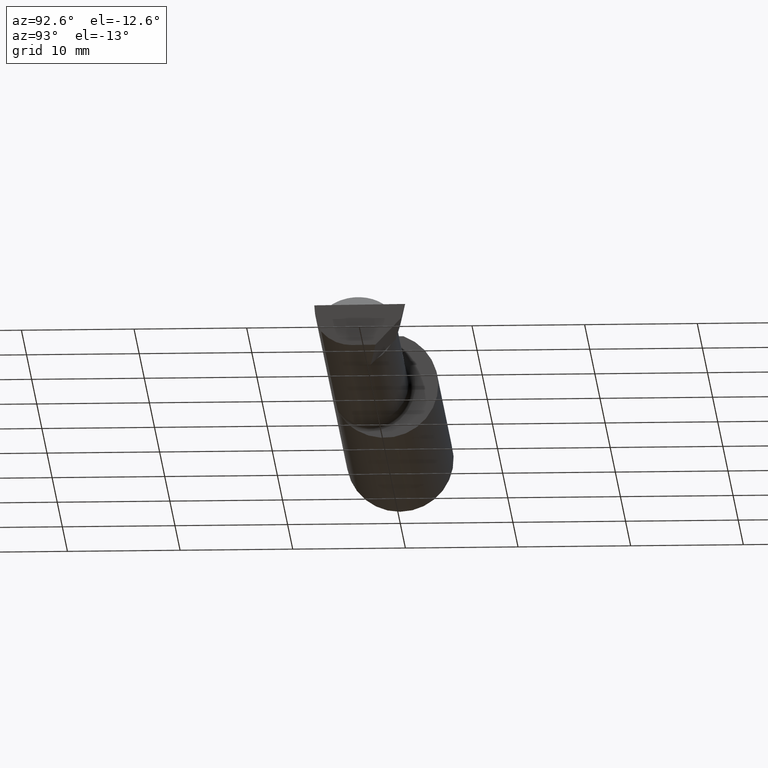
[diagram: clean part render]
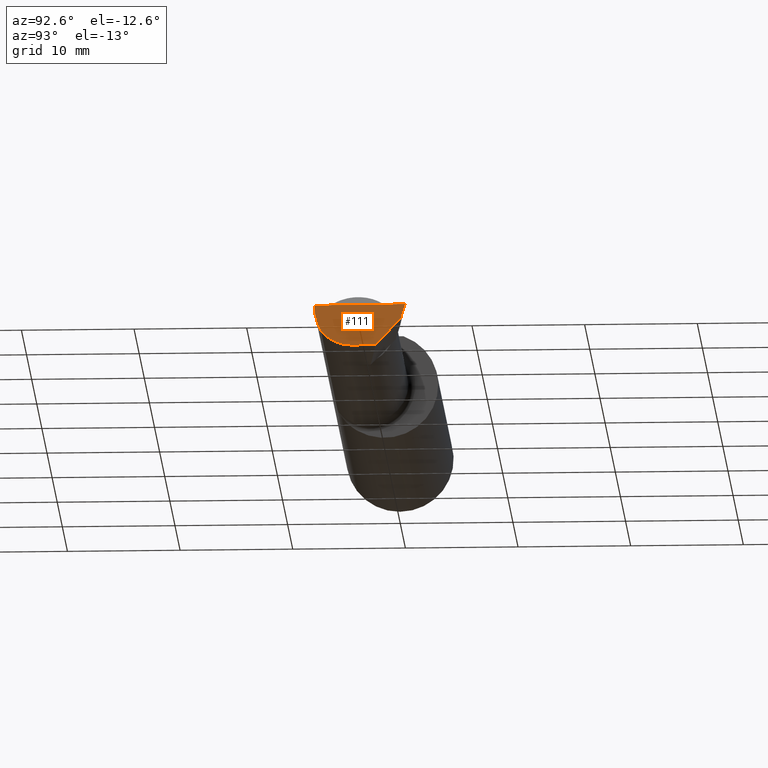
[diagram: same view with one face highlighted and labeled with its STEP entity id]
A machine part, auxiliary view. The second image highlights one B-rep face of the part: STEP entity #111.
In plain terms, the highlighted planar face has unit normal (-0.9922, 0.026, 0.1219).
Its self-contained STEP definition (entity closure, byte-faithful):
#16 = ORIENTED_EDGE ( 'NONE', *, *, #217, .T. ) ;
#28 = EDGE_CURVE ( 'NONE', #187, #472, #323, .T. ) ;
#42 = VERTEX_POINT ( 'NONE', #310 ) ;
#56 = ORIENTED_EDGE ( 'NONE', *, *, #28, .F. ) ;
#77 = CARTESIAN_POINT ( 'NONE',  ( 2.477925907309857401, -0.1365595166907236646, -0.1227499502647107360 ) ) ;
#105 =( BOUNDED_CURVE ( )  B_SPLINE_CURVE ( 3, ( #617, #77, #337, #522 ),
 .UNSPECIFIED., .F., .T. ) 
 B_SPLINE_CURVE_WITH_KNOTS ( ( 4, 4 ),
 ( 5.632580117768154260, 6.493234751459282528 ),
 .UNSPECIFIED. ) 
 CURVE ( )  GEOMETRIC_REPRESENTATION_ITEM ( )  RATIONAL_B_SPLINE_CURVE ( ( 1.000000000000000000, 0.9392195014330942948, 0.9392195014330942948, 1.000000000000000000 ) ) 
 REPRESENTATION_ITEM ( '' )  );
#109 = CARTESIAN_POINT ( 'NONE',  ( 2.493766568580444432, 0.1168246249203733628, -0.04780233936830585728 ) ) ;
#111 = ADVANCED_FACE ( 'NONE', ( #554 ), #551, .F. ) ;
#144 = CARTESIAN_POINT ( 'NONE',  ( 2.481080296960508580, -0.1635956445993030639, -0.09130436773856169530 ) ) ;
#167 = CARTESIAN_POINT ( 'NONE',  ( 2.491672876940991710, -0.1873499999999999888, 6.915950918908297591E-17 ) ) ;
#187 = VERTEX_POINT ( 'NONE', #144 ) ;
#188 = EDGE_CURVE ( 'NONE', #472, #381, #321, .T. ) ;
#201 = DIRECTION ( 'NONE',  ( 0.1053106618240634978, 0.6976485211320199165, 0.7086580314005359593 ) ) ;
#211 = DIRECTION ( 'NONE',  ( 0.1219104985251942275, 0.000000000000000000, 0.9925410975618785825 ) ) ;
#216 = CARTESIAN_POINT ( 'NONE',  ( 2.475850273311264615, -0.1244607267090816621, -0.1422282308645907711 ) ) ;
#217 = EDGE_CURVE ( 'NONE', #187, #228, #105, .T. ) ;
#223 = EDGE_CURVE ( 'NONE', #342, #228, #569, .T. ) ;
#228 = VERTEX_POINT ( 'NONE', #586 ) ;
#271 = CARTESIAN_POINT ( 'NONE',  ( 2.490039159128059953, -0.2497391662021650194, 6.932588350567417155E-17 ) ) ;
#279 = EDGE_CURVE ( 'NONE', #42, #381, #478, .T. ) ;
#284 = VECTOR ( 'NONE', #391, 39.37007874015748143 ) ;
#291 = CARTESIAN_POINT ( 'NONE',  ( 2.491672876940991710, -0.1873499999999999888, 6.915950918908297591E-17 ) ) ;
#294 = VECTOR ( 'NONE', #583, 39.37007874015748143 ) ;
#303 = ORIENTED_EDGE ( 'NONE', *, *, #358, .T. ) ;
#310 = CARTESIAN_POINT ( 'NONE',  ( 2.493439983562941720, 0.1146611065212078395, -0.04999999999999999584 ) ) ;
#321 = LINE ( 'NONE', #271, #623 ) ;
#323 =( BOUNDED_CURVE ( )  B_SPLINE_CURVE ( 3, ( #335, #397, #534, #291 ),
 .UNSPECIFIED., .F., .F. ) 
 B_SPLINE_CURVE_WITH_KNOTS ( ( 4, 4 ),
 ( 0.8516985021657653698, 1.360746882515200484 ),
 .UNSPECIFIED. ) 
 CURVE ( )  GEOMETRIC_REPRESENTATION_ITEM ( )  RATIONAL_B_SPLINE_CURVE ( ( 1.000000000000000000, 0.9785221379938656705, 0.9785221379938656705, 1.000000000000000000 ) ) 
 REPRESENTATION_ITEM ( '' )  );
#335 = CARTESIAN_POINT ( 'NONE',  ( 2.481080296960508580, -0.1635956445993030639, -0.09130436773856169530 ) ) ;
#337 = CARTESIAN_POINT ( 'NONE',  ( 2.476787929832031221, -0.09887019258091189755, -0.1400500000000000078 ) ) ;
#342 = VERTEX_POINT ( 'NONE', #544 ) ;
#358 = EDGE_CURVE ( 'NONE', #342, #42, #454, .T. ) ;
#381 = VERTEX_POINT ( 'NONE', #442 ) ;
#391 = DIRECTION ( 'NONE',  ( -0.02617694830779365364, -0.9996573249755593693, -8.535148296544462419E-17 ) ) ;
#397 = CARTESIAN_POINT ( 'NONE',  ( 2.484117089522337452, -0.1792580844883771285, -0.06324101202936134591 ) ) ;
#430 = EDGE_LOOP ( 'NONE', ( #16, #485, #303, #570, #627, #56 ) ) ;
#435 = VECTOR ( 'NONE', #201, 39.37007874015748854 ) ;
#442 = CARTESIAN_POINT ( 'NONE',  ( 2.499999999999978684, 0.1306500000000237749, 8.405341369881224661E-14 ) ) ;
#454 = LINE ( 'NONE', #109, #435 ) ;
#472 = VERTEX_POINT ( 'NONE', #167 ) ;
#478 = LINE ( 'NONE', #566, #294 ) ;
#485 = ORIENTED_EDGE ( 'NONE', *, *, #223, .F. ) ;
#508 = AXIS2_PLACEMENT_3D ( 'NONE', #216, #511, #211 ) ;
#511 = DIRECTION ( 'NONE',  ( -0.9922060308645608284, 0.02598182930461468559, 0.1218693434050591162 ) ) ;
#522 = CARTESIAN_POINT ( 'NONE',  ( 2.477873865042410806, -0.05739999999999999963, -0.1400500000000000633 ) ) ;
#534 = CARTESIAN_POINT ( 'NONE',  ( 2.487725449370724817, -0.1873500000000000443, -0.03213820089768505694 ) ) ;
#544 = CARTESIAN_POINT ( 'NONE',  ( 2.480058035321255794, 0.02601009779168069955, -0.1400500000000000633 ) ) ;
#551 = PLANE ( 'NONE',  #508 ) ;
#554 = FACE_OUTER_BOUND ( 'NONE', #430, .T. ) ;
#566 = CARTESIAN_POINT ( 'NONE',  ( 2.500188977433779769, 0.1311105994646662165, 0.001440373173041438384 ) ) ;
#569 = LINE ( 'NONE', #615, #284 ) ;
#570 = ORIENTED_EDGE ( 'NONE', *, *, #279, .T. ) ;
#583 = DIRECTION ( 'NONE',  ( 0.1240019227988267692, 0.3022330132596589558, 0.9451342385281472636 ) ) ;
#586 = CARTESIAN_POINT ( 'NONE',  ( 2.477873865042410806, -0.05739999999999999963, -0.1400500000000000633 ) ) ;
#615 = CARTESIAN_POINT ( 'NONE',  ( 2.477889026591898247, -0.05682100378451882677, -0.1400500000000000633 ) ) ;
#617 = CARTESIAN_POINT ( 'NONE',  ( 2.481080296960508580, -0.1635956445993030639, -0.09130436773856169530 ) ) ;
#623 = VECTOR ( 'NONE', #626, 39.37007874015748854 ) ;
#626 = DIRECTION ( 'NONE',  ( 0.02617694830779364323, 0.9996573249755593693, -2.665804247635780349E-18 ) ) ;
#627 = ORIENTED_EDGE ( 'NONE', *, *, #188, .F. ) ;